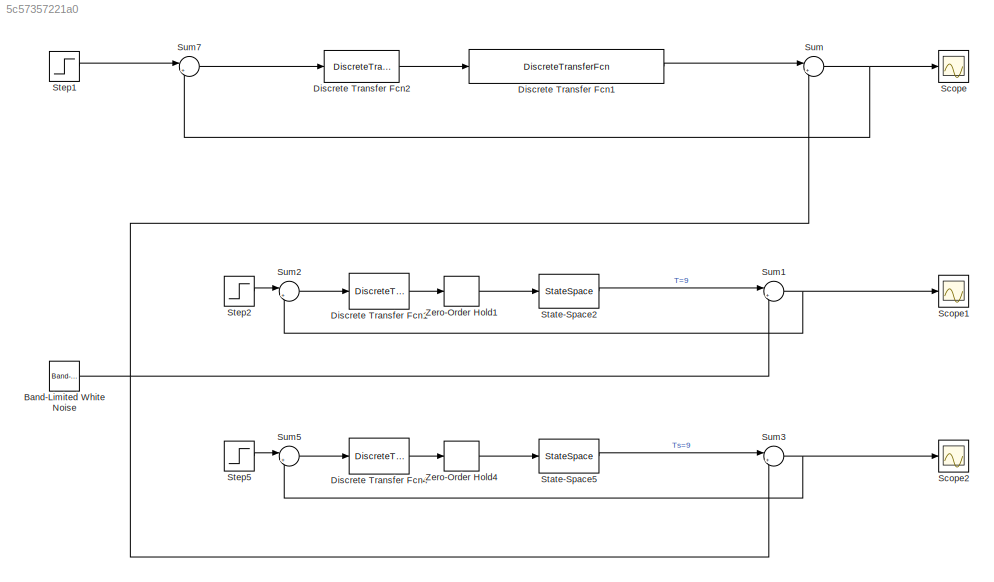
MODEL slx_5c57357221a0
KIND model
CONFIG AbsTol = auto
CONFIG EnableMultiTasking = off
CONFIG FixedStep = auto
CONFIG MaxStep = auto
CONFIG MinStep = auto
CONFIG RelTol = 1e-3
CONFIG SampleTimeConstraint = Unconstrained
CONFIG Solver = VariableStepAuto
CONFIG SolverName = VariableStepAuto
CONFIG StartTime = 0.0
CONFIG StopTime = 2000.0
BLOCK [Reference] Band-Limited White Noise  REF=simulink/Sources/Band-Limited
White Noise
  Ports = [0, 1]
  SourceBlock = simulink/Sources/Band-Limited\nWhite Noise
  SourceProductBaseCode = SL
  SourceProductName = Simulink
  SourceType = Band-Limited White Noise.
BLOCK [DiscreteTransferFcn] Discrete Transfer Fcn1
  Denominator = D_matched(2,:)
  InputPortMap = u0
  Numerator = N_matched(2,:)
  Ports = [1, 1]
  SampleTime = Ts(2)
BLOCK [DiscreteTransferFcn] Discrete Transfer Fcn1 
  Denominator = [1 -2.235 1.583 -0.3479]
  InputPortMap = u0
  Numerator = [-0.00046 -0.00143 -0.0002716]
  Ports = [1, 1]
  SampleTime = 9
BLOCK [DiscreteTransferFcn] Discrete Transfer Fcn2 
  Denominator = [1 0.3394]
  InputPortMap = u0
  Numerator = [-8.5297]
  Ports = [1, 1]
  SampleTime = 9
BLOCK [DiscreteTransferFcn] Discrete Transfer Fcn4
  Denominator = D_bilinear(2,:)
  InputPortMap = u0
  Numerator = N_bilinear(2,:)
  Ports = [1, 1]
  SampleTime = Ts(2)
BLOCK [Scope] Scope
  Floating = off
  NumInputPorts = 1
  Ports = [1]
  ScopeSpecificationString = Simulink.scopes.TimeScopeBlockCfg('CurrentConfiguration', extmgr.ConfigurationSet(extmgr.Configuration('Core','General UI',true),extmgr.Configuration('Core','Source UI',true),extmgr.Configuration('Sources','WiredSimulink',true,'DataLoggingVariableName','ScopeData1'),extmgr.Configuration('Visuals','Time Domain',true,'SerializedDisplays',{struct('MinYLimReal','-0.58722','MaxYLimReal','1.71905','YLab...<+1389ch>
BLOCK [Scope] Scope1
  Floating = off
  NumInputPorts = 1
  Ports = [1]
  ScopeSpecificationString = Simulink.scopes.TimeScopeBlockCfg('CurrentConfiguration', extmgr.ConfigurationSet(extmgr.Configuration('Core','General UI',true),extmgr.Configuration('Core','Source UI',true),extmgr.Configuration('Sources','WiredSimulink',true,'DataLoggingVariableName','ScopeData2'),extmgr.Configuration('Visuals','Time Domain',true,'SerializedDisplays',{struct('MinYLimReal','-0.44368','MaxYLimReal','1.73231','YLab...<+1392ch>
BLOCK [Scope] Scope2
  Floating = off
  NumInputPorts = 1
  Ports = [1]
  ScopeSpecificationString = Simulink.scopes.TimeScopeBlockCfg('CurrentConfiguration', extmgr.ConfigurationSet(extmgr.Configuration('Core','General UI',true),extmgr.Configuration('Core','Source UI',true),extmgr.Configuration('Sources','WiredSimulink',true,'DataLoggingVariableName','ScopeData3'),extmgr.Configuration('Visuals','Time Domain',true,'SerializedDisplays',{struct('MinYLimReal','-0.44367','MaxYLimReal','1.73226','YLab...<+1393ch>
BLOCK [StateSpace] State-Space2
  A = A
  B = B
  C = C
  D = 0
  InitialCondition = 0
  Ports = [1, 1]
BLOCK [StateSpace] State-Space5
  A = A
  B = B
  C = C
  D = 0
  InitialCondition = 0
  Ports = [1, 1]
BLOCK [Step] Step1 
  SampleTime = 0
BLOCK [Step] Step2
  SampleTime = 0
BLOCK [Step] Step5
  SampleTime = 0
BLOCK [Sum] Sum
  IconShape = round
  InputSameDT = off
  Inputs = |++
  OutDataTypeStr = Inherit: Inherit via internal rule
  Ports = [2, 1]
  SaturateOnIntegerOverflow = off
BLOCK [Sum] Sum1
  IconShape = round
  InputSameDT = off
  Inputs = |++
  OutDataTypeStr = Inherit: Inherit via internal rule
  Ports = [2, 1]
  SaturateOnIntegerOverflow = off
BLOCK [Sum] Sum2
  IconShape = round
  InputSameDT = off
  Inputs = |+-
  OutDataTypeStr = Inherit: Inherit via internal rule
  Ports = [2, 1]
  SaturateOnIntegerOverflow = off
BLOCK [Sum] Sum3
  IconShape = round
  InputSameDT = off
  Inputs = |++
  OutDataTypeStr = Inherit: Inherit via internal rule
  Ports = [2, 1]
  SaturateOnIntegerOverflow = off
BLOCK [Sum] Sum5
  IconShape = round
  InputSameDT = off
  Inputs = |+-
  OutDataTypeStr = Inherit: Inherit via internal rule
  Ports = [2, 1]
  SaturateOnIntegerOverflow = off
BLOCK [Sum] Sum7
  IconShape = round
  InputSameDT = off
  Inputs = |+-
  OutDataTypeStr = Inherit: Inherit via internal rule
  Ports = [2, 1]
  SaturateOnIntegerOverflow = off
BLOCK [ZeroOrderHold] Zero-Order Hold1
  SampleTime = -1
BLOCK [ZeroOrderHold] Zero-Order Hold4
  SampleTime = -1
NET Band-Limited White Noise:1 -> Sum1:2, Sum3:2, Sum:2
LINE Discrete Transfer Fcn1 :1 -> Sum:1
LINE Discrete Transfer Fcn1:1 -> Zero-Order Hold1:1
LINE Discrete Transfer Fcn2 :1 -> Discrete Transfer Fcn1 :1
LINE Discrete Transfer Fcn4:1 -> Zero-Order Hold4:1
LINE State-Space2:1 -> Sum1:1
LINE State-Space5:1 -> Sum3:1
LINE Step1 :1 -> Sum7:1
LINE Step2:1 -> Sum2:1
LINE Step5:1 -> Sum5:1
NET Sum1:1 -> Scope1:1, Sum2:2
LINE Sum2:1 -> Discrete Transfer Fcn1:1
NET Sum3:1 -> Scope2:1, Sum5:2
LINE Sum5:1 -> Discrete Transfer Fcn4:1
LINE Sum7:1 -> Discrete Transfer Fcn2 :1
NET Sum:1 -> Scope:1, Sum7:2
LINE Zero-Order Hold1:1 -> State-Space2:1
LINE Zero-Order Hold4:1 -> State-Space5:1
note: NET lines group one-source signal fan-out (src -> all destinations, sorted); 1:1 wires keep LINE
